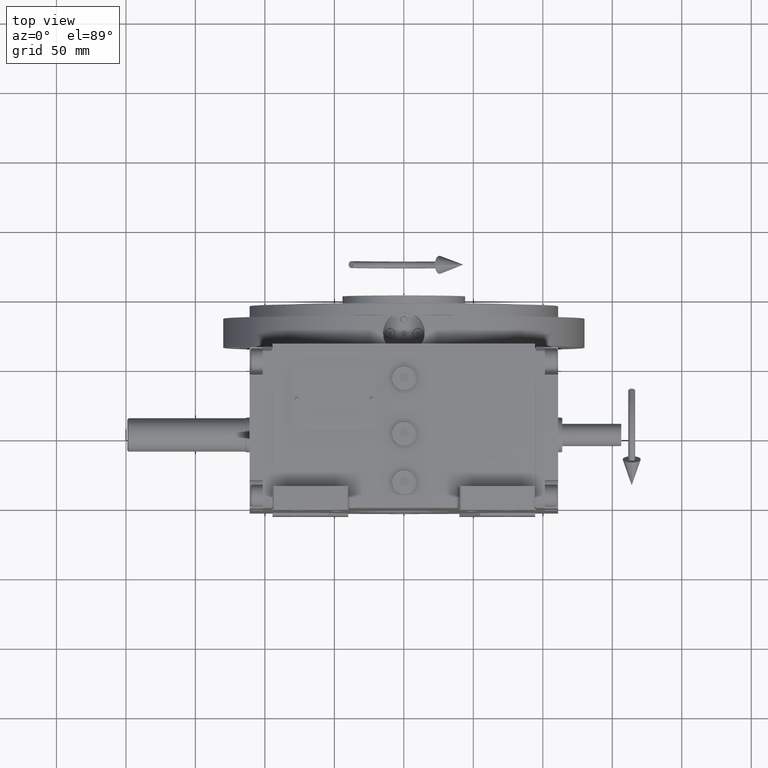
[diagram: clean part render]
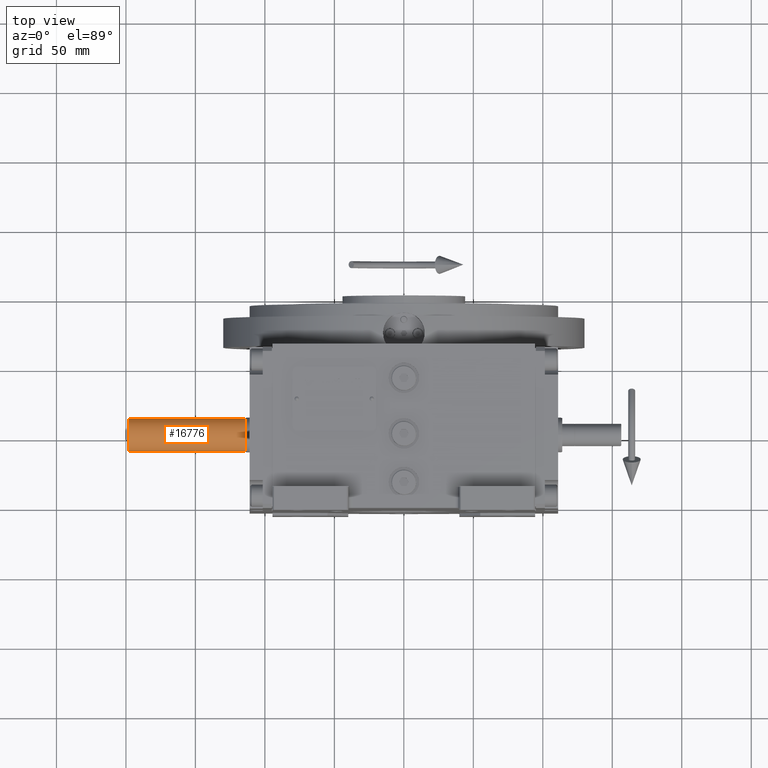
[diagram: same view with one face highlighted and labeled with its STEP entity id]
A machine part, top view. The second image highlights one B-rep face of the part: STEP entity #16776.
In plain terms, the highlighted cylindrical surface (edge-blend (fillet) strip) has radius 12 mm, axis along (1, 0, -0).
Its self-contained STEP definition (entity closure, byte-faithful):
#39 = CARTESIAN_POINT ( 'NONE',  ( 2.927413515468598497E-29, -68.00000000000000000, 0.000000000000000000 ) ) ;
#951 = LINE ( 'NONE', #58983, #35504 ) ;
#2486 = CARTESIAN_POINT ( 'NONE',  ( 11.68747215005502937, -151.9997947754481515, -3.140921173904469121 ) ) ;
#2818 = CARTESIAN_POINT ( 'NONE',  ( -12.00000000000000000, -68.00000000000000000, 1.387778780781445676E-14 ) ) ;
#3843 = CARTESIAN_POINT ( 'NONE',  ( -11.99979476728735328, -151.9997947751159302, -1.570769467353567261 ) ) ;
#5201 = ORIENTED_EDGE ( 'NONE', *, *, #37806, .T. ) ;
#8780 = LINE ( 'NONE', #2818, #60552 ) ;
#9829 = CARTESIAN_POINT ( 'NONE',  ( -6.043324403962492042, -151.9997947752266043, -10.48525733219422840 ) ) ;
#10635 = DIRECTION ( 'NONE',  ( -4.696245347539746060E-31, 1.000000000000000000, 1.405158487424927278E-30 ) ) ;
#11500 = AXIS2_PLACEMENT_3D ( 'NONE', #30563, #51636, #31259 ) ;
#13077 = CARTESIAN_POINT ( 'NONE',  ( 3.140920835347784212, -151.9997947753215897, -11.68747224117086603 ) ) ;
#13429 = CARTESIAN_POINT ( 'NONE',  ( 7.374434396410531001, -151.9997947753690255, -9.595838077726311255 ) ) ;
#13758 = DIRECTION ( 'NONE',  ( 4.696245347539746060E-31, -1.000000000000000000, -1.405158487424927278E-30 ) ) ;
#14571 = VERTEX_POINT ( 'NONE', #55654 ) ;
#14872 = CIRCLE ( 'NONE', #11500, 12.00000000000000000 ) ;
#15458 = ORIENTED_EDGE ( 'NONE', *, *, #49476, .F. ) ;
#16776 = ADVANCED_FACE ( 'NONE', ( #38043 ), #44014, .T. ) ;
#17632 = CARTESIAN_POINT ( 'NONE',  ( 6.043324302922657765, -151.9997947753531662, -10.48525738601620994 ) ) ;
#17988 = CARTESIAN_POINT ( 'NONE',  ( 11.99979472219784782, -151.9997947754639256, -1.570769780619828415 ) ) ;
#20359 = CARTESIAN_POINT ( 'NONE',  ( 12.00000000000000000, -68.00000000000000000, 0.000000000000000000 ) ) ;
#20788 = ORIENTED_EDGE ( 'NONE', *, *, #47870, .T. ) ;
#21613 = CARTESIAN_POINT ( 'NONE',  ( -12.00000000000000000, -151.9999743518074524, 5.273559366969493567E-13 ) ) ;
#25982 = CARTESIAN_POINT ( 'NONE',  ( -9.595837989402667745, -151.9997947751791685, -7.374434517721339510 ) ) ;
#29222 = CARTESIAN_POINT ( 'NONE',  ( 10.48525721088371654, -151.9997947754164613, -6.043324606651607311 ) ) ;
#29356 = VERTEX_POINT ( 'NONE', #56919 ) ;
#29580 = CARTESIAN_POINT ( 'NONE',  ( 9.595837864061978806, -151.9997947754006589, -7.374434674385701882 ) ) ;
#29906 = CARTESIAN_POINT ( 'NONE',  ( 1.570769433002841220, -151.9997947753057304, -11.99979476786183419 ) ) ;
#30563 = CARTESIAN_POINT ( 'NONE',  ( -8.512610354191582471E-29, -68.00000000000000000, 1.387778780781445676E-14 ) ) ;
#30935 = CARTESIAN_POINT ( 'NONE',  ( -10.48525732930568743, -151.9997947751633660, -6.043324409103435713 ) ) ;
#31259 = DIRECTION ( 'NONE',  ( -1.000000000000000000, 0.000000000000000000, 8.363680118842845412E-15 ) ) ;
#32479 = AXIS2_PLACEMENT_3D ( 'NONE', #39, #10635, #37358 ) ;
#33816 = CARTESIAN_POINT ( 'NONE',  ( 8.185690959687837525E-14, -151.9998973876187449, -11.99989738393883520 ) ) ;
#34169 = CARTESIAN_POINT ( 'NONE',  ( 11.99994868217576105, -151.9999487036159280, -2.030395018781661065E-07 ) ) ;
#35175 = CARTESIAN_POINT ( 'NONE',  ( -11.68747222836064914, -151.9997947751317042, -3.140920897998690897 ) ) ;
#35504 = VECTOR ( 'NONE', #38617, 1000.000000000000000 ) ;
#35888 = EDGE_LOOP ( 'NONE', ( #55231, #20788, #5201, #52491, #15458 ) ) ;
#37358 = DIRECTION ( 'NONE',  ( 1.000000000000000000, 0.000000000000000000, -8.437694987151189707E-15 ) ) ;
#37672 = VERTEX_POINT ( 'NONE', #20359 ) ;
#37806 = EDGE_CURVE ( 'NONE', #37672, #54411, #951, .T. ) ;
#38043 = FACE_OUTER_BOUND ( 'NONE', #35888, .T. ) ;
#38617 = DIRECTION ( 'NONE',  ( 4.696245347539746060E-31, -1.000000000000000000, -1.405158487424927278E-30 ) ) ;
#42633 = CARTESIAN_POINT ( 'NONE',  ( 11.99994868217576105, -151.9999487036159280, -2.030395018781661065E-07 ) ) ;
#43356 = EDGE_CURVE ( 'NONE', #14571, #54411, #65879, .T. ) ;
#44014 = CYLINDRICAL_SURFACE ( 'NONE', #32479, 12.00000000000000000 ) ;
#47452 = CARTESIAN_POINT ( 'NONE',  ( -1.570769461485967078, -151.9997947752740686, -11.99979476789349775 ) ) ;
#47870 = EDGE_CURVE ( 'NONE', #29356, #37672, #14872, .T. ) ;
#49476 = EDGE_CURVE ( 'NONE', #65533, #14571, #57645, .T. ) ;
#51636 = DIRECTION ( 'NONE',  ( 4.696245347539746060E-31, -1.000000000000000000, -1.405158487424927278E-30 ) ) ;
#52350 = CARTESIAN_POINT ( 'NONE',  ( -12.00000000000000000, -151.9999743518074524, 5.273559366969493567E-13 ) ) ;
#52491 = ORIENTED_EDGE ( 'NONE', *, *, #43356, .F. ) ;
#54411 = VERTEX_POINT ( 'NONE', #42633 ) ;
#55231 = ORIENTED_EDGE ( 'NONE', *, *, #63298, .F. ) ;
#55654 = CARTESIAN_POINT ( 'NONE',  ( 8.185690959687837525E-14, -151.9998973876187449, -11.99989738393883520 ) ) ;
#56604 = CARTESIAN_POINT ( 'NONE',  ( -7.374434513026816518, -151.9997947752108587, -9.595837992970736252 ) ) ;
#56919 = CARTESIAN_POINT ( 'NONE',  ( -12.00000000000000000, -68.00000000000000000, 1.387778780781445676E-14 ) ) ;
#57644 = CARTESIAN_POINT ( 'NONE',  ( -3.140920892271073850, -151.9997947752582661, -11.68747222976790034 ) ) ;
#57645 = B_SPLINE_CURVE_WITH_KNOTS ( 'NONE', 3,
 ( #52350, #3843, #35175, #30935, #25982, #56604, #9829, #57644, #47452, #62216 ),
 .UNSPECIFIED., .F., .F.,
 ( 4, 2, 2, 2, 4 ),
 ( 0.000000000000000000, 0.1250000011333334549, 0.2500000022666669097, 0.3750000034000002813, 0.5000000045333335974 ),
 .UNSPECIFIED. ) ;
#58983 = CARTESIAN_POINT ( 'NONE',  ( 12.00000000000000000, -68.00000000000000000, 0.000000000000000000 ) ) ;
#60552 = VECTOR ( 'NONE', #13758, 1000.000000000000000 ) ;
#62216 = CARTESIAN_POINT ( 'NONE',  ( 8.185690959687837525E-14, -151.9998973876187449, -11.99989738393883520 ) ) ;
#63298 = EDGE_CURVE ( 'NONE', #29356, #65533, #8780, .T. ) ;
#65533 = VERTEX_POINT ( 'NONE', #21613 ) ;
#65879 = B_SPLINE_CURVE_WITH_KNOTS ( 'NONE', 3,
 ( #33816, #29906, #13077, #17632, #13429, #29580, #29222, #2486, #17988, #34169 ),
 .UNSPECIFIED., .F., .F.,
 ( 4, 2, 2, 2, 4 ),
 ( 0.5000000045333335974, 0.6250000034000001703, 0.7500000022666668542, 0.8750000011333334271, 1.000000000000000000 ),
 .UNSPECIFIED. ) ;